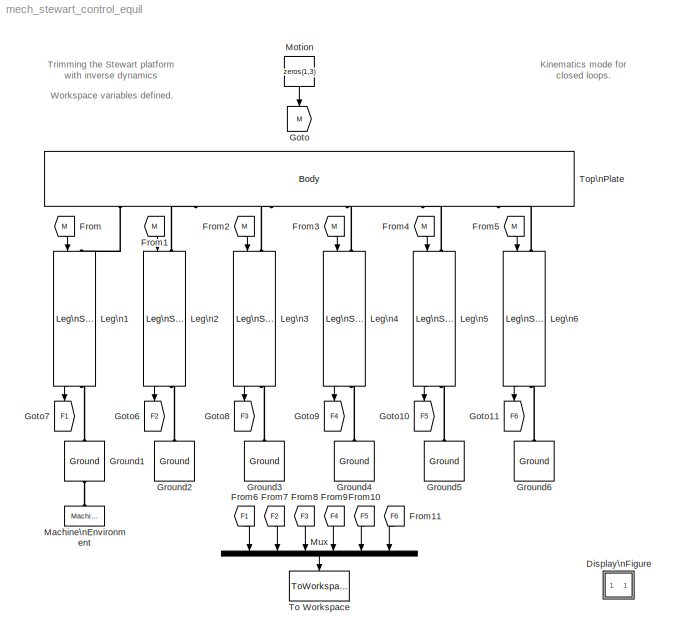
MODEL mech_stewart_control_equil
KIND model
CONFIG PreLoadFcn = mech_stewart_studies_setup;
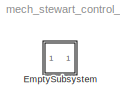
BLOCK [SubSystem] Display\nFigure
  Description = Help callback for Stewart platform inverse dynamics trimming model: mech_stewart_control_equil.  Opens Help browser to Type 19 marker at documentation for this tutorial model.
  FunctionWithSeparateData = off
  MaskDisplay = image(imread('info.bmp'))
  MaskHideContents = off
  MaskIconFrame = off
  MaskIconOpaque = on
  MaskIconRotate = none
  MaskIconUnits = normalized
  MaskSelfModifiable = on
  MaskType = Help callback
  MinAlgLoopOccurrences = off
  Opaque = off
  OpenFcn = helpview([docroot '/toolbox/physmod/mech/mech.map'], 'mech_stewart_control_equil_help');
  Ports = []
  PropExecContextOutsideSubsystem = off
  RTWSystemCode = Auto
  RequestExecContextInheritance = off
  Tag = Help
BLOCK [SubSystem] Display\nFigure/EmptySubsystem
  FunctionWithSeparateData = off
  MaskHideContents = off
  MinAlgLoopOccurrences = off
  Opaque = off
  Ports = []
  PropExecContextOutsideSubsystem = off
  RTWSystemCode = Auto
  RequestExecContextInheritance = off
BLOCK [From] From
  CloseFcn = tagdialog Close
  GotoTag = M
BLOCK [From] From1
  CloseFcn = tagdialog Close
  GotoTag = M
BLOCK [From] From10
  CloseFcn = tagdialog Close
  GotoTag = F5
BLOCK [From] From11
  CloseFcn = tagdialog Close
  GotoTag = F6
BLOCK [From] From2
  CloseFcn = tagdialog Close
  GotoTag = M
BLOCK [From] From3
  CloseFcn = tagdialog Close
  GotoTag = M
BLOCK [From] From4
  CloseFcn = tagdialog Close
  GotoTag = M
BLOCK [From] From5
  CloseFcn = tagdialog Close
  GotoTag = M
BLOCK [From] From6
  CloseFcn = tagdialog Close
  GotoTag = F1
BLOCK [From] From7
  CloseFcn = tagdialog Close
  GotoTag = F2
BLOCK [From] From8
  CloseFcn = tagdialog Close
  GotoTag = F3
BLOCK [From] From9
  CloseFcn = tagdialog Close
  GotoTag = F4
BLOCK [Goto] Goto
  GotoTag = M
  TagVisibility = local
BLOCK [Goto] Goto10
  GotoTag = F5
  TagVisibility = local
BLOCK [Goto] Goto11
  GotoTag = F6
  TagVisibility = local
BLOCK [Goto] Goto6
  GotoTag = F2
  TagVisibility = local
BLOCK [Goto] Goto7
  GotoTag = F1
  TagVisibility = local
BLOCK [Goto] Goto8
  GotoTag = F3
  TagVisibility = local
BLOCK [Goto] Goto9
  GotoTag = F4
  TagVisibility = local
BLOCK [Reference] Ground1  REF=mblibv1/Bodies/Ground
  ClassName = Ground
  CoordPosition = pos_base(1,:)
  CoordPositionUnits = m
  DialogClass = GroundBlock
  DialogController = MECH.DynMechDlgSource
  FunctionWithSeparateData = off
  LeftPortType = env
  MachineId = [0 0]
  PhysicalDomain = Mechanical
  Ports = [0, 0, 0, 0, 0, 1, 1]
  RTWMemSecDataConstants = Inherit from model
  RTWMemSecDataInternal = Inherit from model
  RTWMemSecDataParameters = Inherit from model
  RTWMemSecFuncExecute = Inherit from model
  RTWMemSecFuncInitTerm = Inherit from model
  RightPortType = workingframe
  ShowEnvPort = on
  ShowPortLabels = FromPortIcon
  SourceBlock = mblibv1/Bodies/Ground
  SourceType = Ground
  StateVectorMgrId = -1
  SystemSampleTime = -1
  UserData = DataTag0
  UserDataPersistent = on
BLOCK [Reference] Ground2  REF=mblibv1/Bodies/Ground
  ClassName = Ground
  CoordPosition = pos_base(2,:)
  CoordPositionUnits = m
  DialogClass = GroundBlock
  DialogController = MECH.DynMechDlgSource
  FunctionWithSeparateData = off
  LeftPortType = env
  MachineId = [0 0]
  PhysicalDomain = Mechanical
  Ports = [0, 0, 0, 0, 0, 0, 1]
  RTWMemSecDataConstants = Inherit from model
  RTWMemSecDataInternal = Inherit from model
  RTWMemSecDataParameters = Inherit from model
  RTWMemSecFuncExecute = Inherit from model
  RTWMemSecFuncInitTerm = Inherit from model
  RightPortType = workingframe
  ShowEnvPort = off
  ShowPortLabels = FromPortIcon
  SourceBlock = mblibv1/Bodies/Ground
  SourceType = Ground
  StateVectorMgrId = -1
  SystemSampleTime = -1
  UserData = DataTag1
  UserDataPersistent = on
BLOCK [Reference] Ground3  REF=mblibv1/Bodies/Ground
  ClassName = Ground
  CoordPosition = pos_base(3,:)
  CoordPositionUnits = m
  DialogClass = GroundBlock
  DialogController = MECH.DynMechDlgSource
  FunctionWithSeparateData = off
  LeftPortType = env
  MachineId = [0 0]
  PhysicalDomain = Mechanical
  Ports = [0, 0, 0, 0, 0, 0, 1]
  RTWMemSecDataConstants = Inherit from model
  RTWMemSecDataInternal = Inherit from model
  RTWMemSecDataParameters = Inherit from model
  RTWMemSecFuncExecute = Inherit from model
  RTWMemSecFuncInitTerm = Inherit from model
  RightPortType = workingframe
  ShowEnvPort = off
  ShowPortLabels = FromPortIcon
  SourceBlock = mblibv1/Bodies/Ground
  SourceType = Ground
  StateVectorMgrId = -1
  SystemSampleTime = -1
  UserData = DataTag2
  UserDataPersistent = on
BLOCK [Reference] Ground4  REF=mblibv1/Bodies/Ground
  ClassName = Ground
  CoordPosition = pos_base(4,:)
  CoordPositionUnits = m
  DialogClass = GroundBlock
  DialogController = MECH.DynMechDlgSource
  FunctionWithSeparateData = off
  LeftPortType = env
  MachineId = [0 0]
  PhysicalDomain = Mechanical
  Ports = [0, 0, 0, 0, 0, 0, 1]
  RTWMemSecDataConstants = Inherit from model
  RTWMemSecDataInternal = Inherit from model
  RTWMemSecDataParameters = Inherit from model
  RTWMemSecFuncExecute = Inherit from model
  RTWMemSecFuncInitTerm = Inherit from model
  RightPortType = workingframe
  ShowEnvPort = off
  ShowPortLabels = FromPortIcon
  SourceBlock = mblibv1/Bodies/Ground
  SourceType = Ground
  StateVectorMgrId = -1
  SystemSampleTime = -1
  UserData = DataTag3
  UserDataPersistent = on
BLOCK [Reference] Ground5  REF=mblibv1/Bodies/Ground
  ClassName = Ground
  CoordPosition = pos_base(5,:)
  CoordPositionUnits = m
  DialogClass = GroundBlock
  DialogController = MECH.DynMechDlgSource
  FunctionWithSeparateData = off
  LeftPortType = env
  MachineId = [0 0]
  PhysicalDomain = Mechanical
  Ports = [0, 0, 0, 0, 0, 0, 1]
  RTWMemSecDataConstants = Inherit from model
  RTWMemSecDataInternal = Inherit from model
  RTWMemSecDataParameters = Inherit from model
  RTWMemSecFuncExecute = Inherit from model
  RTWMemSecFuncInitTerm = Inherit from model
  RightPortType = workingframe
  ShowEnvPort = off
  ShowPortLabels = FromPortIcon
  SourceBlock = mblibv1/Bodies/Ground
  SourceType = Ground
  StateVectorMgrId = -1
  SystemSampleTime = -1
  UserData = DataTag4
  UserDataPersistent = on
BLOCK [Reference] Ground6  REF=mblibv1/Bodies/Ground
  ClassName = Ground
  CoordPosition = pos_base(6,:)
  CoordPositionUnits = m
  DialogClass = GroundBlock
  DialogController = MECH.DynMechDlgSource
  FunctionWithSeparateData = off
  LeftPortType = env
  MachineId = [0 0]
  PhysicalDomain = Mechanical
  Ports = [0, 0, 0, 0, 0, 0, 1]
  RTWMemSecDataConstants = Inherit from model
  RTWMemSecDataInternal = Inherit from model
  RTWMemSecDataParameters = Inherit from model
  RTWMemSecFuncExecute = Inherit from model
  RTWMemSecFuncInitTerm = Inherit from model
  RightPortType = workingframe
  ShowEnvPort = off
  ShowPortLabels = FromPortIcon
  SourceBlock = mblibv1/Bodies/Ground
  SourceType = Ground
  StateVectorMgrId = -1
  SystemSampleTime = -1
  UserData = DataTag5
  UserDataPersistent = on
BLOCK [Reference] Leg\n1  REF=mech_stewart_control_equil_leg/Leg\nSubsystem  (lib defined in mdl_8334d8778961, mdl_8ce1c56f7ddf)
  FunctionWithSeparateData = off
  Ports = [1, 1, 0, 0, 0, 1, 1]
  RTWMemSecDataConstants = Inherit from model
  RTWMemSecDataInternal = Inherit from model
  RTWMemSecDataParameters = Inherit from model
  RTWMemSecFuncExecute = Inherit from model
  RTWMemSecFuncInitTerm = Inherit from model
  ShowPortLabels = FromPortIcon
  SourceBlock = mech_stewart_control_equil_leg/Leg\nSubsystem
  SystemSampleTime = -1
  ln = 1
BLOCK [Reference] Leg\n2  REF=mech_stewart_control_equil_leg/Leg\nSubsystem  (lib defined in mdl_8334d8778961, mdl_8ce1c56f7ddf)
  FunctionWithSeparateData = off
  Ports = [1, 1, 0, 0, 0, 1, 1]
  RTWMemSecDataConstants = Inherit from model
  RTWMemSecDataInternal = Inherit from model
  RTWMemSecDataParameters = Inherit from model
  RTWMemSecFuncExecute = Inherit from model
  RTWMemSecFuncInitTerm = Inherit from model
  ShowPortLabels = FromPortIcon
  SourceBlock = mech_stewart_control_equil_leg/Leg\nSubsystem
  SystemSampleTime = -1
  ln = 2
BLOCK [Reference] Leg\n3  REF=mech_stewart_control_equil_leg/Leg\nSubsystem  (lib defined in mdl_8334d8778961, mdl_8ce1c56f7ddf)
  FunctionWithSeparateData = off
  Ports = [1, 1, 0, 0, 0, 1, 1]
  RTWMemSecDataConstants = Inherit from model
  RTWMemSecDataInternal = Inherit from model
  RTWMemSecDataParameters = Inherit from model
  RTWMemSecFuncExecute = Inherit from model
  RTWMemSecFuncInitTerm = Inherit from model
  ShowPortLabels = FromPortIcon
  SourceBlock = mech_stewart_control_equil_leg/Leg\nSubsystem
  SystemSampleTime = -1
  ln = 3
BLOCK [Reference] Leg\n4  REF=mech_stewart_control_equil_leg/Leg\nSubsystem  (lib defined in mdl_8334d8778961, mdl_8ce1c56f7ddf)
  FunctionWithSeparateData = off
  Ports = [1, 1, 0, 0, 0, 1, 1]
  RTWMemSecDataConstants = Inherit from model
  RTWMemSecDataInternal = Inherit from model
  RTWMemSecDataParameters = Inherit from model
  RTWMemSecFuncExecute = Inherit from model
  RTWMemSecFuncInitTerm = Inherit from model
  ShowPortLabels = FromPortIcon
  SourceBlock = mech_stewart_control_equil_leg/Leg\nSubsystem
  SystemSampleTime = -1
  ln = 4
BLOCK [Reference] Leg\n5  REF=mech_stewart_control_equil_leg/Leg\nSubsystem  (lib defined in mdl_8334d8778961, mdl_8ce1c56f7ddf)
  FunctionWithSeparateData = off
  Ports = [1, 1, 0, 0, 0, 1, 1]
  RTWMemSecDataConstants = Inherit from model
  RTWMemSecDataInternal = Inherit from model
  RTWMemSecDataParameters = Inherit from model
  RTWMemSecFuncExecute = Inherit from model
  RTWMemSecFuncInitTerm = Inherit from model
  ShowPortLabels = FromPortIcon
  SourceBlock = mech_stewart_control_equil_leg/Leg\nSubsystem
  SystemSampleTime = -1
  ln = 5
BLOCK [Reference] Leg\n6  REF=mech_stewart_control_equil_leg/Leg\nSubsystem  (lib defined in mdl_8334d8778961, mdl_8ce1c56f7ddf)
  FunctionWithSeparateData = off
  Ports = [1, 1, 0, 0, 0, 1, 1]
  RTWMemSecDataConstants = Inherit from model
  RTWMemSecDataInternal = Inherit from model
  RTWMemSecDataParameters = Inherit from model
  RTWMemSecFuncExecute = Inherit from model
  RTWMemSecFuncInitTerm = Inherit from model
  ShowPortLabels = FromPortIcon
  SourceBlock = mech_stewart_control_equil_leg/Leg\nSubsystem
  SystemSampleTime = -1
  ln = 6
BLOCK [Reference] Machine\nEnvironment  REF=mblibv1/Bodies/Machine\nEnvironment
  AnalysisType = Kinematics
  AngularAssemblyTolerance = 1e-3
  AngularAssemblyToleranceUnits = rad
  ClassName = Environment
  ConstraintAbsTolerance = 1e-4
  ConstraintRelTolerance = 1e-4
  ConstraintSolverType = Machine precision
  DialogController = MECH.DialogSource
  DialogTemplateClass = MECH.MachineEnvironment
  Dimensionality = 3D Only
  FunctionWithSeparateData = off
  Gravity = [0 0 -9.81]
  GravityAsSignal = off
  GravityUnits = m/s^2
  LinearAssemblyTolerance = 1e-3
  LinearAssemblyToleranceUnits = m
  PerturbationSize = 1e-5
  PhysicalDomain = Mechanical
  PortType = env
  Ports = [0, 0, 0, 0, 0, 0, 1]
  RTWMemSecDataConstants = Inherit from model
  RTWMemSecDataInternal = Inherit from model
  RTWMemSecDataParameters = Inherit from model
  RTWMemSecFuncExecute = Inherit from model
  RTWMemSecFuncInitTerm = Inherit from model
  RedundancyAnalysisTolerance = 1e-14
  RedundancyAnalysisToleranceType = Automatically select tolerance
  ShowPortLabels = FromPortIcon
  SourceBlock = mblibv1/Bodies/Machine\nEnvironment
  SourceType = Machine Environment
  StatePerturbationType = Fixed
  SyncWhenCopied = off
  SystemSampleTime = -1
  Tag = Factory ground
  UseRobustSingularityHandling = on
  VisualizeMachine = on
BLOCK [Constant] Motion
  OutDataType = sfix(16)
  OutScaling = 2^0
  Value = zeros(1,3)
BLOCK [Mux] Mux
  DisplayOption = bar
  Inputs = 6
  Ports = [6, 1]
BLOCK [ToWorkspace] To Workspace
  MaxDataPoints = 1
  SampleTime = -1
  SaveFormat = Array
  VariableName = Forces
BLOCK [Reference] Top\nPlate  REF=mblibv1/Bodies/Body
  AttachedToCS = 1
  BodyColor = [0.5 0.5 0.5]
  CG = Left$CG$[0 0 height]$WORLD$WORLD$m$[0 0 0]$Euler X-Y-Z$deg$WORLD$false
  CGPos = [0 0 height]
  CGRot = [0 0 0]
  CS0Pos = []
  CS0Rot = []
  CS10Pos = []
  CS10Rot = []
  CS11Pos = []
  CS11Rot = []
  CS12Pos = []
  CS12Rot = []
  CS13Pos = []
  CS13Rot = []
  CS14Pos = []
  CS14Rot = []
  CS15Pos = []
  CS15Rot = []
  CS16Pos = []
  CS16Rot = []
  CS17Pos = []
  CS17Rot = []
  CS18Pos = []
  CS18Rot = []
  CS19Pos = []
  CS19Rot = []
  CS1Pos = pos_top(1,:)
  CS1Rot = [0 0 0]
  CS20Pos = []
  CS20Rot = []
  CS2Pos = pos_top(2,:)
  CS2Rot = [0 0 0]
  CS3Pos = pos_top(3,:)
  CS3Rot = [0 0 0]
  CS4Pos = pos_top(4,:)
  CS4Rot = [0 0 0]
  CS5Pos = pos_top(5,:)
  CS5Rot = [0 0 0]
  CS6Pos = pos_top(6,:)
  CS6Rot = [0 0 0]
  CS7Pos = []
  CS7Rot = []
  CS8Pos = []
  CS8Rot = []
  CS9Pos = []
  CS9Rot = []
  ClassName = Body
  Density = 1
  DensityUnits = kg/m^3
  DensityUse = false
  DialogClass = MechanicalBodyBlock
  DialogController = MECH.DynMechDlgSource
  GraphicsMode = 1
  GraphicsObj = []
  Inertia = top_inertia
  InertiaUnits = kg*m^2
  LeftPortType = workingframe
  Mass = top_mass
  MassUnits = kg
  PhysicalDomain = mechanical
  Ports = [0, 0, 0, 0, 0, 0, 6]
  RConnTagsString = CS1|CS2|CS3|CS4|CS5|CS6
  RightPortType = workingframe
  Shape = Cylinder
  ShapeDims = [1 1]
  ShapeUnits = m
  ShapeUse = false
  SourceBlock = mblibv1/Bodies/Body
  SourceType = Body
  SubClassName = Unknown
  WorkingFrames = Right$CS1$pos_top(1,:)$WORLD$WORLD$m$[0 0 0]$Euler X-Y-Z$deg$WORLD$true#Right$CS2$pos_top(2,:)$WORLD$WORLD$m$[0 0 0]$Euler X-Y-Z$deg$WORLD$true#Right$CS3$pos_top(3,:)$WORLD$WORLD$m$[0 0 0]$Euler X-Y-Z$deg$WORLD$true#Right$CS4$pos_top(4,:)$WORLD$WORLD$m$[0 0 0]$Euler X-Y-Z$deg$WORLD$true#Right$CS5$pos_top(5,:)$WORLD$WORLD$m$[0 0 0]$Euler X-Y-Z$deg$WORLD$true#Right$CS6$pos_top(6,:)$WORLD$WORLD$m$[0 ...<+31ch>
ANNOTATION (root): Kinematics mode for\nclosed loops.
ANNOTATION (root): Trimming the Stewart platform\nwith inverse dynamics
ANNOTATION (root): Workspace variables defined.
LINE From10:1 -> Mux:5
LINE From11:1 -> Mux:6
LINE From1:1 -> Leg\n2:1
LINE From2:1 -> Leg\n3:1
LINE From3:1 -> Leg\n4:1
LINE From4:1 -> Leg\n5:1
LINE From5:1 -> Leg\n6:1
LINE From6:1 -> Mux:1
LINE From7:1 -> Mux:2
LINE From8:1 -> Mux:3
LINE From9:1 -> Mux:4
LINE From:1 -> Leg\n1:1
LINE Leg\n1:1 -> Goto7:1
LINE Leg\n2:1 -> Goto6:1
LINE Leg\n3:1 -> Goto8:1
LINE Leg\n4:1 -> Goto9:1
LINE Leg\n5:1 -> Goto10:1
LINE Leg\n6:1 -> Goto11:1
LINE Motion:1 -> Goto:1
LINE Mux:1 -> To Workspace:1
PLINE Ground1:LConn1 -- Machine\nEnvironment:RConn1
PLINE Ground1:RConn1 -- Leg\n1:RConn1
PLINE Ground2:RConn1 -- Leg\n2:RConn1
PLINE Ground3:RConn1 -- Leg\n3:RConn1
PLINE Ground4:RConn1 -- Leg\n4:RConn1
PLINE Ground5:RConn1 -- Leg\n5:RConn1
PLINE Ground6:RConn1 -- Leg\n6:RConn1
PLINE Leg\n1:LConn1 -- Top\nPlate:RConn1
PLINE Leg\n2:LConn1 -- Top\nPlate:RConn2
PLINE Leg\n3:LConn1 -- Top\nPlate:RConn3
PLINE Leg\n4:LConn1 -- Top\nPlate:RConn4
PLINE Leg\n5:LConn1 -- Top\nPlate:RConn5
PLINE Leg\n6:LConn1 -- Top\nPlate:RConn6
